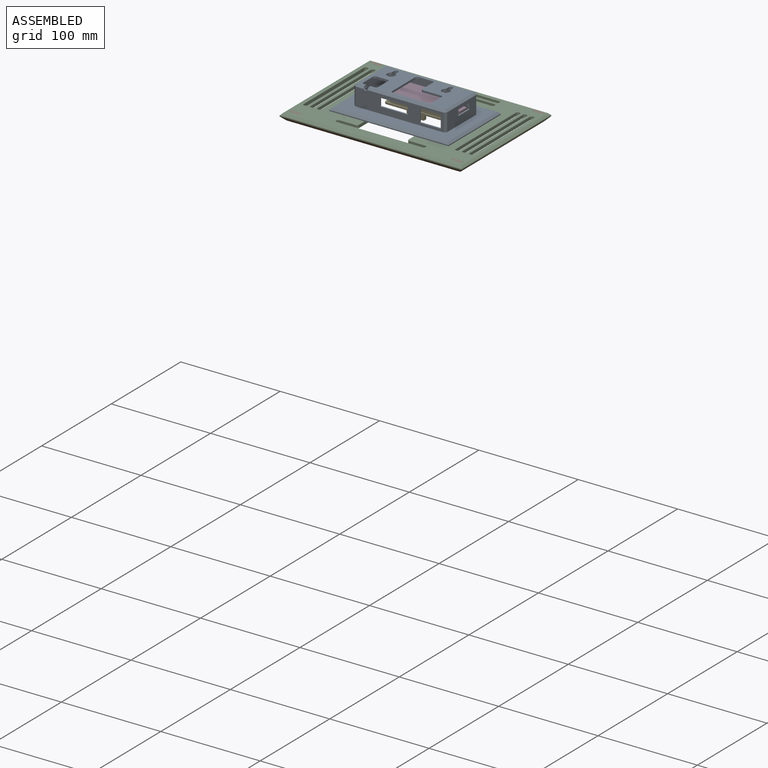
[diagram: assembled view]
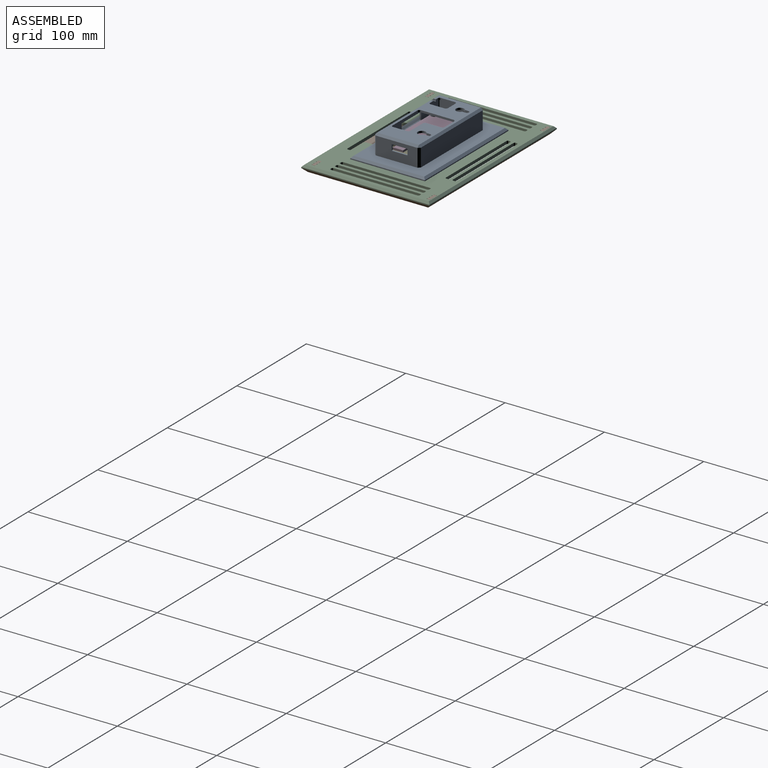
[diagram: assembled view, second angle]
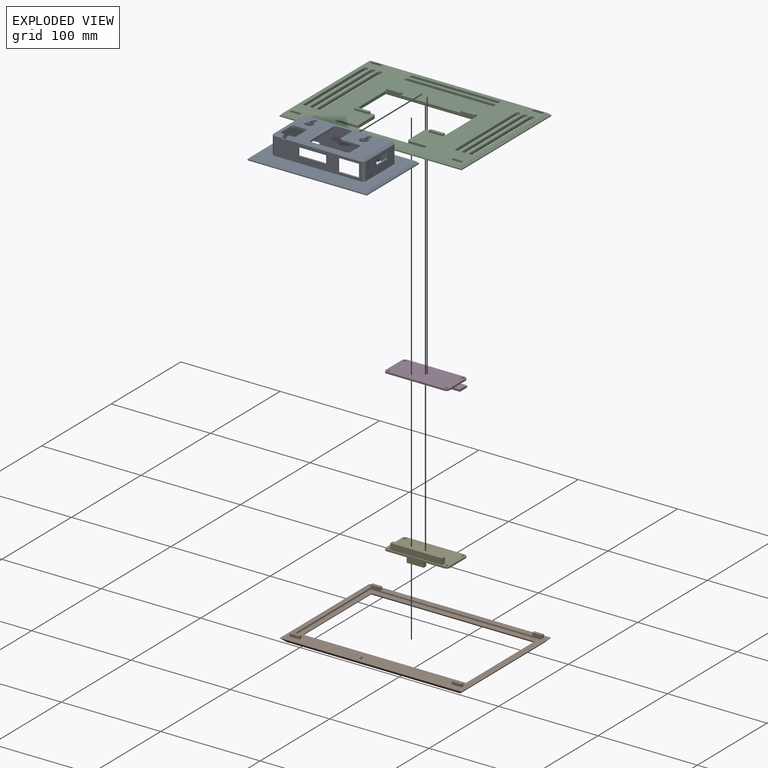
[diagram: exploded view]
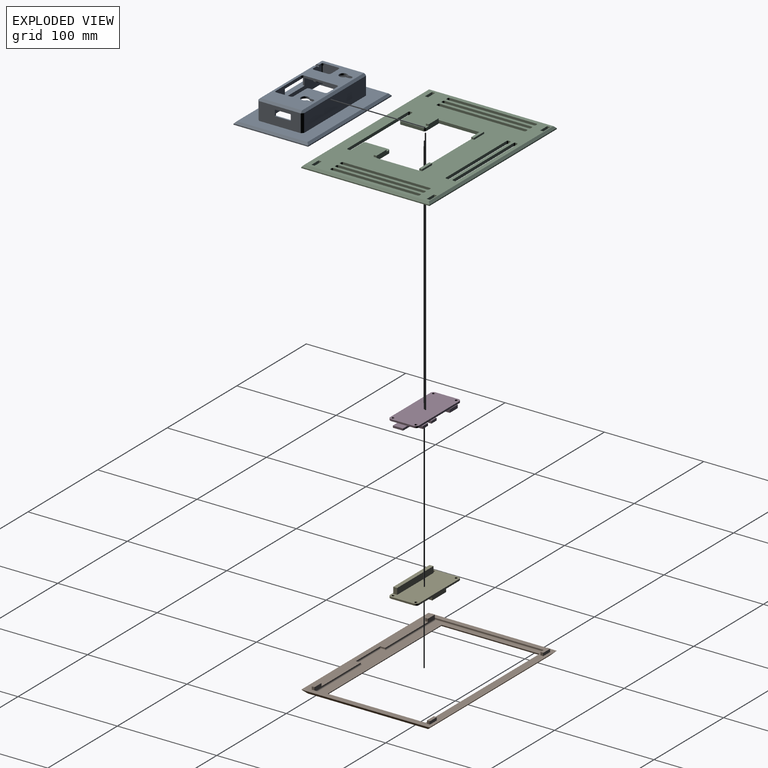
[diagram: exploded view, second angle]
ASSEMBLY  parts=5 mates=4
PART A: 125 faces, bbox 75x120x23 mm
  f0: plane 89x18mm, normal (-1,0,0), area 1102.9mm2, adj f1,f12,f13,f14,f15,f16,f17,f18
  f1: plane 77.12x2mm, normal (-0.71,0,-0.71), area 217.5mm2, adj f0,f4,f83,f121,f122
  f2: plane 4.62x2mm, normal (1,0,0), area 8.8mm2, adj f3,f4,f120,f121,f122
  f3: plane 90x43mm, normal (0,0,1), area 2081mm2, adj f2,f5,f6,f9,f10,f85,f86,f87
  f4: plane 89x42mm, normal (0,0,-1), area 2264.3mm2, adj f1,f2,f74,f79,f80,f84,f93,f94
  f5: plane 88x21mm, normal (1,0,0), area 1290.9mm2, adj f3,f12,f13,f14,f15,f16,f17,f18
  f6: plane 88x21mm, normal (-1,0,0), area 1790mm2, adj f3,f55,f58,f59,f67,f68,f90,f91
  f7: plane 42x18mm, normal (0,1,0), area 660.2mm2, adj f27,f28,f29,f30,f31,f32,f33,f34
  f8: plane 42x18mm, normal (0,-1,0), area 756mm2, adj f56,f73,f78,f79
  f9: plane 49.2x21mm, normal (0,-1,0), area 781.6mm2, adj f3,f27,f28,f29,f30,f31,f32,f33
  f10: plane 49.2x21mm, normal (0,1,0), area 877.4mm2, adj f3,f55,f61,f62,f66,f68,f91,f92
  f11: plane 89x18mm, normal (1,0,0), area 1602mm2, adj f56,f73,f74,f75
  f12: plane 12x1.5mm, normal (0,-1,0), area 18mm2, adj f0,f5,f13,f19
  f13: cylinder r=0.5mm len=1.5mm, axis (1,0,0), area 1.2mm2, adj f0,f5,f12,f14
  f14: plane 20x1.5mm, normal (0,0,-1), area 30mm2, adj f0,f5,f13,f15
  f15: cylinder r=0.5mm len=1.5mm, axis (1,0,0), area 1.2mm2, adj f0,f5,f14,f16
  f16: plane 12x1.5mm, normal (0,1,0), area 18mm2, adj f0,f5,f15,f17
  f17: cylinder r=0.5mm len=1.5mm, axis (1,0,0), area 1.2mm2, adj f0,f5,f16,f18
  f18: plane 20x1.5mm, normal (0,0,1), area 30mm2, adj f0,f5,f17,f19
  f19: cylinder r=0.5mm len=1.5mm, axis (1,0,0), area 1.2mm2, adj f0,f5,f12,f18
  f20: plane 7.5x1.5mm, normal (0,-1,0), area 11.3mm2, adj f0,f5,f21,f26
  f21: cylinder r=0.5mm len=1.5mm, axis (1,0,0), area 1.2mm2, adj f0,f5,f20,f22
  f22: plane 27x1.5mm, normal (0,0,-1), area 40.5mm2, adj f0,f5,f21,f23
  f23: cylinder r=0.5mm len=1.5mm, axis (1,0,0), area 1.2mm2, adj f0,f5,f22,f24
  f24: plane 7x1.5mm, normal (0,1,0), area 10.5mm2, adj f0,f5,f23,f25
  f25: cylinder r=0.5mm len=1.5mm, axis (1,0,0), area 1.2mm2, adj f0,f5,f24,f26
  f26: plane 27.5x1.5mm, normal (0,0,1), area 41.3mm2, adj f0,f5,f20,f25
  f27: plane 15x1.5mm, normal (0,0,-1), area 22.5mm2, adj f7,f9,f28,f34
  f28: cylinder r=0.5mm len=1.5mm, axis (0,-1,0), area 1.2mm2, adj f7,f9,f27,f29
  f29: plane 5x1.5mm, normal (1,0,0), area 7.5mm2, adj f7,f9,f28,f30
  f30: cylinder r=0.5mm len=1.5mm, axis (0,-1,0), area 1.2mm2, adj f7,f9,f29,f31
  f31: plane 15x1.5mm, normal (0,0,1), area 22.5mm2, adj f7,f9,f30,f32
  f32: cylinder r=0.5mm len=1.5mm, axis (0,-1,0), area 1.2mm2, adj f7,f9,f31,f33
  f33: plane 5x1.5mm, normal (-1,0,0), area 7.5mm2, adj f7,f9,f32,f34
  f34: cylinder r=0.5mm len=1.5mm, axis (0,-1,0), area 1.2mm2, adj f7,f9,f27,f33
  f35: plane 2.5x2.5mm, normal (0,0,1), area 4.9mm2, adj f50
  f36: cylinder r=1.25mm len=4mm, axis (0,0,-1), area 31.4mm2, adj f38,f47
  f37: cylinder r=3mm len=6mm, axis (0,0,-1), area 37.7mm2, adj f38,f86
  f38: plane 6x6mm, normal (0,0,1), area 23.4mm2, adj f36,f37
  f39: plane 2.5x2.5mm, normal (0,0,1), area 4.9mm2, adj f46
  f40: cylinder r=1.25mm len=4mm, axis (0,0,-1), area 31.4mm2, adj f42,f43
  f41: cylinder r=3mm len=6mm, axis (0,0,-1), area 37.7mm2, adj f42,f88
  f42: plane 6x6mm, normal (0,0,1), area 23.4mm2, adj f40,f41
  f43: plane 2.5x2.5mm, normal (0,0,1), area 4.9mm2, adj f40
  f44: plane 6x6mm, normal (0,0,1), area 23.4mm2, adj f45,f46
  f45: cylinder r=3mm len=6mm, axis (0,0,-1), area 37.7mm2, adj f44,f87
  f46: cylinder r=1.25mm len=4mm, axis (0,0,-1), area 31.4mm2, adj f39,f44
  f47: plane 2.5x2.5mm, normal (0,0,1), area 4.9mm2, adj f36
  f48: plane 6x6mm, normal (0,0,1), area 23.4mm2, adj f49,f50
  f49: cylinder r=3mm len=6mm, axis (0,0,-1), area 37.7mm2, adj f48,f85
  f50: cylinder r=1.25mm len=4mm, axis (0,0,-1), area 31.4mm2, adj f35,f48
  f51: plane 75x1mm, normal (0,1,0), area 75mm2, adj f52,f54,f55,f69
  f52: plane 120x1mm, normal (-1,0,0), area 120mm2, adj f51,f53,f55,f70
  f53: plane 75x1mm, normal (0,-1,0), area 75mm2, adj f52,f54,f55,f72
  f54: plane 120x1mm, normal (1,0,0), area 120mm2, adj f51,f53,f55,f71
  f55: plane 120x75mm, normal (0,0,1), area 4937.8mm2, adj f5,f6,f9,f10,f51,f52,f53,f54
  f56: plane 116x71mm, normal (0,0,-1), area 3966mm2, adj f0,f7,f8,f11,f69,f70,f71,f72
  f57: plane 15.5x2mm, normal (-1,0,0), area 31mm2, adj f9,f55,f58,f59
  f58: plane 3.1x2mm, normal (0,1,0), area 6.2mm2, adj f6,f55,f57,f59
  f59: plane 15.5x4.1mm, normal (0,0,1), area 48.3mm2, adj f6,f9,f57,f58,f90
  f60: plane 3.1x2mm, normal (0,-1,0), area 6.2mm2, adj f5,f55,f61,f62
  f61: plane 15.5x2mm, normal (1,0,0), area 31mm2, adj f10,f55,f60,f62
  f62: plane 15.5x4.1mm, normal (0,0,1), area 48.3mm2, adj f5,f10,f60,f61,f92
  f63: plane 15.5x2mm, normal (1,0,0), area 31mm2, adj f9,f55,f64,f65
  f64: plane 3.1x2mm, normal (0,1,0), area 6.2mm2, adj f5,f55,f63,f65
  f65: plane 15.5x4.1mm, normal (0,0,1), area 48.3mm2, adj f5,f9,f63,f64,f89
  f66: plane 15.5x2mm, normal (-1,0,0), area 31mm2, adj f10,f55,f67,f68
  f67: plane 3.1x2mm, normal (0,-1,0), area 6.2mm2, adj f6,f55,f66,f68
  f68: plane 15.5x4.1mm, normal (0,0,1), area 48.3mm2, adj f6,f10,f66,f67,f91
  f69: plane 75x2mm, normal (0,0.71,-0.71), area 206.5mm2, adj f51,f56,f70,f71
  f70: plane 120x2mm, normal (-0.71,0,-0.71), area 333.8mm2, adj f52,f56,f69,f72
  f71: plane 120x2mm, normal (0.71,0,-0.71), area 333.8mm2, adj f54,f56,f69,f72
  f72: plane 75x2mm, normal (0,-0.71,-0.71), area 206.5mm2, adj f53,f56,f70,f71
  f73: plane 18x2mm, normal (0.71,-0.71,0), area 50.9mm2, adj f8,f11,f56,f76
  f74: plane 89x2mm, normal (0.71,0,-0.71), area 251.7mm2, adj f4,f11,f76,f77
  f75: plane 18x2mm, normal (0.71,0.71,0), area 50.9mm2, adj f7,f11,f56,f77
  f76: plane 2x2mm, normal (0.58,-0.58,-0.58), area 3.5mm2, adj f73,f74,f79
  f77: plane 2x2mm, normal (0.58,0.58,-0.58), area 3.5mm2, adj f74,f75,f80
  f78: plane 18x2mm, normal (-0.71,-0.71,0), area 50.9mm2, adj f0,f8,f56,f82
  f79: plane 42x2mm, normal (0,-0.71,-0.71), area 118.8mm2, adj f4,f8,f76,f82
  f80: plane 42x2mm, normal (0,0.71,-0.71), area 118.8mm2, adj f4,f7,f77,f83
  f81: plane 18x2mm, normal (-0.71,0.71,0), area 50.9mm2, adj f0,f7,f56,f83
  f82: plane 2x2mm, normal (-0.58,-0.58,-0.58), area 3.5mm2, adj f78,f79,f84
  f83: plane 2x2mm, normal (-0.58,0.58,-0.58), area 3.5mm2, adj f1,f80,f81
  f84: plane 8.42x2mm, normal (-0.71,0,-0.71), area 23.1mm2, adj f0,f4,f82,f121,f123,f124
  f85: torus R=5mm, axis (0,0,1), area 73.6mm2, adj f3,f49
  f86: torus R=5mm, axis (0,0,1), area 73.6mm2, adj f3,f37
  f87: torus R=5mm, axis (0,0,1), area 73.6mm2, adj f3,f45
  f88: torus R=5mm, axis (0,0,1), area 73.6mm2, adj f3,f41
  f89: cylinder r=1mm len=19mm, axis (0,0,-1), area 29.8mm2, adj f3,f5,f9,f65
  f90: cylinder r=1mm len=19mm, axis (0,0,1), area 29.8mm2, adj f3,f6,f9,f59
  f91: cylinder r=1mm len=19mm, axis (0,0,-1), area 29.8mm2, adj f3,f6,f10,f68
  f92: cylinder r=1mm len=19mm, axis (0,0,1), area 29.8mm2, adj f3,f5,f10,f62
  f93: plane 36x2mm, normal (1,0,0), area 72mm2, adj f3,f4,f94,f104
  f94: cylinder r=2mm len=2mm, axis (0,0,1), area 6.3mm2, adj f3,f4,f93,f95
  f95: plane 33x2mm, normal (0,1,0), area 66mm2, adj f3,f4,f94,f96
  f96: cylinder r=2mm len=2mm, axis (0,0,1), area 6.3mm2, adj f3,f4,f95,f97
  f97: plane 14x2mm, normal (-1,0,0), area 28mm2, adj f3,f4,f96,f98
  f98: cylinder r=2mm len=2mm, axis (0,0,1), area 6.3mm2, adj f3,f4,f97,f99
  f99: plane 15x2mm, normal (0,-1,0), area 30mm2, adj f3,f4,f98,f100
  f100: cylinder r=2mm len=2mm, axis (0,0,1), area 6.3mm2, adj f3,f4,f99,f101
  f101: plane 18x2mm, normal (-1,0,0), area 36mm2, adj f3,f4,f100,f102
  f102: cylinder r=2mm len=2mm, axis (0,0,1), area 6.3mm2, adj f3,f4,f101,f103
  f103: plane 14x2mm, normal (0,-1,0), area 28mm2, adj f3,f4,f102,f104
  f104: cylinder r=2mm len=2mm, axis (0,0,1), area 6.3mm2, adj f3,f4,f93,f103
  f105: cylinder r=4mm len=8mm, axis (0,0,1), area 41.9mm2, adj f3,f4,f106,f108
  f106: plane 3.51x2mm, normal (0,1,0), area 7mm2, adj f3,f4,f105,f107
  f107: cylinder r=2mm len=4mm, axis (0,0,1), area 12.7mm2, adj f3,f4,f106,f108
  f108: plane 3.51x2mm, normal (0,-1,0), area 7mm2, adj f3,f4,f105,f107
  f109: cylinder r=4mm len=8mm, axis (0,0,1), area 41.9mm2, adj f3,f4,f110,f112
  f110: plane 3.54x2mm, normal (0,1,0), area 7.1mm2, adj f3,f4,f109,f111
  f111: cylinder r=2mm len=4mm, axis (0,0,1), area 12.6mm2, adj f3,f4,f110,f112
  f112: plane 3.54x2mm, normal (0,-1,0), area 7.1mm2, adj f3,f4,f109,f111
  f113: plane 2.92x2mm, normal (1,0,0), area 5.3mm2, adj f3,f4,f114,f121,f123,f124
  f114: cylinder r=2mm len=2mm, axis (0,0,1), area 6.3mm2, adj f3,f4,f113,f115
  f115: plane 14x2mm, normal (0,1,0), area 28mm2, adj f3,f4,f114,f116
  f116: cylinder r=2mm len=2mm, axis (0,0,1), area 6.3mm2, adj f3,f4,f115,f117
  f117: plane 11x2mm, normal (-1,0,0), area 22mm2, adj f3,f4,f116,f118
  f118: cylinder r=2mm len=2mm, axis (0,0,1), area 6.3mm2, adj f3,f4,f117,f119
  f119: plane 14x2mm, normal (0,-1,0), area 28mm2, adj f3,f4,f118,f120
  f120: cylinder r=2mm len=2mm, axis (0,0,1), area 6.3mm2, adj f2,f3,f4,f119
  f121: cylinder r=2mm len=4.5mm, axis (-1,0,0), area 14.7mm2, adj f0,f1,f2,f3,f5,f84,f113,f122
  f122: plane 3.44x0.94mm, normal (0,-1,0), area 2.8mm2, adj f1,f2,f4,f121
  f123: plane 3.56x1.06mm, normal (0,1,0), area 3.2mm2, adj f4,f84,f113,f124
  f124: plane 3.56x0.04mm, normal (0,0,-1), area 0.2mm2, adj f84,f113,f121,f123
PART B: 63 faces, bbox 183x129x7 mm
  f0: plane 183x129mm, normal (0,0,1), area 3763.1mm2, adj f1,f2,f3,f4,f5,f6,f7,f8
  f1: plane 66.5x4mm, normal (0,1,0), area 95.3mm2, adj f0,f2,f8,f30,f31,f34,f55
  f2: plane 5x1mm, normal (-1,0,0), area 5mm2, adj f0,f1,f3,f53
  f3: plane 35x1mm, normal (0,1,0), area 35mm2, adj f0,f2,f4,f51
  f4: plane 5x1mm, normal (1,0,0), area 5mm2, adj f0,f3,f5,f52
  f5: plane 71.5x4mm, normal (0,1,0), area 100.3mm2, adj f0,f4,f6,f26,f35,f38,f54
  f6: plane 113x1mm, normal (1,0,0), area 113mm2, adj f0,f5,f7,f56
  f7: plane 173x4mm, normal (0,-1,0), area 230.6mm2, adj f0,f6,f8,f18,f22,f40,f41,f44
  f8: plane 113x1mm, normal (-1,0,0), area 113mm2, adj f0,f1,f7,f57
  f9: plane 98.5x0.5mm, normal (1,0,0), area 49.2mm2, adj f10,f12,f14,f60
  f10: plane 164x0.5mm, normal (0,-1,0), area 82mm2, adj f9,f11,f14,f59
  f11: plane 98.5x0.5mm, normal (-1,0,0), area 49.2mm2, adj f10,f12,f14,f61
  f12: plane 164x0.5mm, normal (0,1,0), area 82mm2, adj f9,f11,f14,f62
  f13: plane 175x121mm, normal (0,0,-1), area 4224.5mm2, adj f47,f48,f49,f50,f59,f60,f61,f62
  f14: plane 171x116mm, normal (0,0,1), area 2992mm2, adj f9,f10,f11,f12,f51,f52,f53,f54
  f15: plane 9.6x3mm, normal (0,1,0), area 28.8mm2, adj f0,f18,f43,f46
  f16: plane 3x2.6mm, normal (-1,0,0), area 7.8mm2, adj f0,f18,f43,f44
  f17: plane 3x2.6mm, normal (1,0,0), area 7.8mm2, adj f0,f18,f45,f46
  f18: plane 10x3mm, normal (0,0,1), area 30mm2, adj f7,f15,f16,f17,f43,f44,f45,f46
  f19: plane 9.6x3mm, normal (0,1,0), area 28.8mm2, adj f0,f22,f39,f42
  f20: plane 3x2.6mm, normal (-1,0,0), area 7.8mm2, adj f0,f22,f39,f40
  f21: plane 3x2.6mm, normal (1,0,0), area 7.8mm2, adj f0,f22,f41,f42
  f22: plane 10x3mm, normal (0,0,1), area 30mm2, adj f7,f19,f20,f21,f39,f40,f41,f42
  f23: plane 3x2.6mm, normal (-1,0,0), area 7.8mm2, adj f0,f26,f35,f36
  f24: plane 9.6x3mm, normal (0,-1,0), area 28.8mm2, adj f0,f26,f36,f37
  f25: plane 3x2.6mm, normal (1,0,0), area 7.8mm2, adj f0,f26,f37,f38
  f26: plane 10x3mm, normal (0,0,1), area 30mm2, adj f5,f23,f24,f25,f35,f36,f37,f38
  f27: plane 3x2.6mm, normal (-1,0,0), area 7.8mm2, adj f0,f30,f31,f32
  f28: plane 9.6x3mm, normal (0,-1,0), area 28.8mm2, adj f0,f30,f32,f33
  f29: plane 3x2.6mm, normal (1,0,0), area 7.8mm2, adj f0,f30,f33,f34
  f30: plane 10x3mm, normal (0,0,1), area 30mm2, adj f1,f27,f28,f29,f31,f32,f33,f34
  f31: cylinder r=0.2mm len=3mm, axis (0,0,1), area 0.9mm2, adj f0,f1,f27,f30
  f32: cylinder r=0.2mm len=3mm, axis (0,0,-1), area 0.9mm2, adj f0,f27,f28,f30
  f33: cylinder r=0.2mm len=3mm, axis (0,0,1), area 0.9mm2, adj f0,f28,f29,f30
  f34: cylinder r=0.2mm len=3mm, axis (0,0,-1), area 0.9mm2, adj f0,f1,f29,f30
  f35: cylinder r=0.2mm len=3mm, axis (0,0,1), area 0.9mm2, adj f0,f5,f23,f26
  f36: cylinder r=0.2mm len=3mm, axis (0,0,-1), area 0.9mm2, adj f0,f23,f24,f26
  f37: cylinder r=0.2mm len=3mm, axis (0,0,1), area 0.9mm2, adj f0,f24,f25,f26
  f38: cylinder r=0.2mm len=3mm, axis (0,0,-1), area 0.9mm2, adj f0,f5,f25,f26
  f39: cylinder r=0.2mm len=3mm, axis (0,0,1), area 0.9mm2, adj f0,f19,f20,f22
  f40: cylinder r=0.2mm len=3mm, axis (0,0,-1), area 0.9mm2, adj f0,f7,f20,f22
  f41: cylinder r=0.2mm len=3mm, axis (0,0,1), area 0.9mm2, adj f0,f7,f21,f22
  f42: cylinder r=0.2mm len=3mm, axis (0,0,-1), area 0.9mm2, adj f0,f19,f21,f22
  f43: cylinder r=0.2mm len=3mm, axis (0,0,1), area 0.9mm2, adj f0,f15,f16,f18
  f44: cylinder r=0.2mm len=3mm, axis (0,0,-1), area 0.9mm2, adj f0,f7,f16,f18
  f45: cylinder r=0.2mm len=3mm, axis (0,0,1), area 0.9mm2, adj f0,f7,f17,f18
  f46: cylinder r=0.2mm len=3mm, axis (0,0,-1), area 0.9mm2, adj f0,f15,f17,f18
  f47: plane 129x4mm, normal (0.71,0,-0.71), area 707.1mm2, adj f0,f13,f48,f49
  f48: plane 183x4mm, normal (0,-0.71,-0.71), area 1012.6mm2, adj f0,f13,f47,f50
  f49: plane 183x4mm, normal (0,0.71,-0.71), area 1012.6mm2, adj f0,f13,f47,f50
  f50: plane 129x4mm, normal (-0.71,0,-0.71), area 707.1mm2, adj f0,f13,f48,f49
  f51: cylinder r=1mm len=35mm, axis (-1,0,0), area 53.8mm2, adj f3,f14,f52,f53
  f52: cylinder r=1mm len=6mm, axis (0,1,0), area 7.9mm2, adj f4,f14,f51,f54
  f53: cylinder r=1mm len=6mm, axis (0,-1,0), area 7.9mm2, adj f2,f14,f51,f55
  f54: cylinder r=1mm len=72.5mm, axis (-1,0,0), area 112.3mm2, adj f5,f14,f52,f56
  f55: cylinder r=1mm len=67.5mm, axis (-1,0,0), area 104.5mm2, adj f1,f14,f53,f57
  f56: cylinder r=1mm len=113mm, axis (0,1,0), area 176.4mm2, adj f6,f14,f54,f58
  f57: cylinder r=1mm len=113mm, axis (0,-1,0), area 176.4mm2, adj f8,f14,f55,f58
  f58: cylinder r=1mm len=173mm, axis (1,0,0), area 270.6mm2, adj f7,f14,f56,f57
  f59: plane 167x1.5mm, normal (0,-0.71,-0.71), area 351.1mm2, adj f10,f13,f60,f61
  f60: plane 101.5x1.5mm, normal (0.71,0,-0.71), area 212.1mm2, adj f9,f13,f59,f62
  f61: plane 101.5x1.5mm, normal (-0.71,0,-0.71), area 212.1mm2, adj f11,f13,f59,f62
  f62: plane 167x1.5mm, normal (0,0.71,-0.71), area 351.1mm2, adj f12,f13,f60,f61
PART C: 142 faces, bbox 183x129x4.8 mm
  f0: plane 179x125mm, normal (0,0,1), area 13687mm2, adj f1,f6,f7,f8,f9,f10,f11,f12
  f1: plane 18x4.8mm, normal (0,1,0), area 79.9mm2, adj f0,f2,f6,f103,f138,f140,f141
  f2: plane 183x129mm, normal (0,0,-1), area 15080.5mm2, adj f1,f3,f4,f5,f6,f7,f8,f9
  f3: plane 183x1mm, normal (0,1,0), area 183mm2, adj f2,f4,f42,f43
  f4: plane 129x1mm, normal (-1,0,0), area 129mm2, adj f2,f3,f5,f44
  f5: plane 183x1mm, normal (0,-1,0), area 183mm2, adj f2,f4,f42,f46
  f6: plane 43x3mm, normal (1,0,0), area 129mm2, adj f0,f1,f2,f7
  f7: plane 90x4.8mm, normal (0,-1,0), area 322mm2, adj f0,f2,f6,f8,f127,f128,f129,f131
  f8: plane 43x3mm, normal (-1,0,0), area 129mm2, adj f0,f2,f7,f37
  f9: cylinder r=0.2mm len=3mm, axis (0,0,-1), area 0.9mm2, adj f0,f2,f10,f38
  f10: plane 9.8x3mm, normal (0,-1,0), area 29.4mm2, adj f0,f2,f9,f11
  f11: cylinder r=0.2mm len=3mm, axis (0,0,-1), area 0.9mm2, adj f0,f2,f10,f12
  f12: plane 3x2.8mm, normal (-1,0,0), area 8.4mm2, adj f0,f2,f11,f13
  f13: cylinder r=0.2mm len=3mm, axis (0,0,-1), area 0.9mm2, adj f0,f2,f12,f14
  f14: plane 9.8x3mm, normal (0,1,0), area 29.4mm2, adj f0,f2,f13,f15
  f15: cylinder r=0.2mm len=3mm, axis (0,0,-1), area 0.9mm2, adj f0,f2,f14,f38
  f16: cylinder r=0.2mm len=3mm, axis (0,0,-1), area 0.9mm2, adj f0,f2,f17,f39
  f17: plane 9.8x3mm, normal (0,-1,0), area 29.4mm2, adj f0,f2,f16,f18
  f18: cylinder r=0.2mm len=3mm, axis (0,0,-1), area 0.9mm2, adj f0,f2,f17,f19
  f19: plane 3x2.8mm, normal (-1,0,0), area 8.4mm2, adj f0,f2,f18,f20
  f20: cylinder r=0.2mm len=3mm, axis (0,0,-1), area 0.9mm2, adj f0,f2,f19,f21
  f21: plane 9.8x3mm, normal (0,1,0), area 29.4mm2, adj f0,f2,f20,f22
  f22: cylinder r=0.2mm len=3mm, axis (0,0,-1), area 0.9mm2, adj f0,f2,f21,f39
  f23: cylinder r=0.2mm len=3mm, axis (0,0,-1), area 0.9mm2, adj f0,f2,f24,f40
  f24: plane 3x2.8mm, normal (-1,0,0), area 8.4mm2, adj f0,f2,f23,f25
  f25: cylinder r=0.2mm len=3mm, axis (0,0,-1), area 0.9mm2, adj f0,f2,f24,f26
  f26: plane 9.8x3mm, normal (0,1,0), area 29.4mm2, adj f0,f2,f25,f27
  f27: cylinder r=0.2mm len=3mm, axis (0,0,-1), area 0.9mm2, adj f0,f2,f26,f28
  f28: plane 3x2.8mm, normal (1,0,0), area 8.4mm2, adj f0,f2,f27,f29
  f29: cylinder r=0.2mm len=3mm, axis (0,0,-1), area 0.9mm2, adj f0,f2,f28,f40
  f30: cylinder r=0.2mm len=3mm, axis (0,0,-1), area 0.9mm2, adj f0,f2,f31,f41
  f31: plane 3x2.8mm, normal (-1,0,0), area 8.4mm2, adj f0,f2,f30,f32
  f32: cylinder r=0.2mm len=3mm, axis (0,0,-1), area 0.9mm2, adj f0,f2,f31,f33
  f33: plane 9.8x3mm, normal (0,1,0), area 29.4mm2, adj f0,f2,f32,f34
  f34: cylinder r=0.2mm len=3mm, axis (0,0,-1), area 0.9mm2, adj f0,f2,f33,f35
  f35: plane 3x2.8mm, normal (1,0,0), area 8.4mm2, adj f0,f2,f34,f36
  f36: cylinder r=0.2mm len=3mm, axis (0,0,-1), area 0.9mm2, adj f0,f2,f35,f41
  f37: plane 18x4.8mm, normal (0,1,0), area 79.9mm2, adj f0,f2,f8,f117,f134,f136,f137
  f38: plane 3x2.8mm, normal (1,0,0), area 8.4mm2, adj f0,f2,f9,f15
  f39: plane 3x2.8mm, normal (1,0,0), area 8.4mm2, adj f0,f2,f16,f22
  f40: plane 9.8x3mm, normal (0,-1,0), area 29.4mm2, adj f0,f2,f23,f29
  f41: plane 9.8x3mm, normal (0,-1,0), area 29.4mm2, adj f0,f2,f30,f36
  f42: plane 129x1mm, normal (1,0,0), area 129mm2, adj f2,f3,f5,f45
  f43: plane 183x2mm, normal (0,0.71,0.71), area 511.9mm2, adj f0,f3,f44,f45
  f44: plane 129x2mm, normal (-0.71,0,0.71), area 359.2mm2, adj f0,f4,f43,f46
  f45: plane 129x2mm, normal (0.71,0,0.71), area 359.2mm2, adj f0,f42,f43,f46
  f46: plane 183x2mm, normal (0,-0.71,0.71), area 511.9mm2, adj f0,f5,f44,f45
  f47: plane 87x3mm, normal (0,-1,0), area 261mm2, adj f0,f2,f48,f54
  f48: cylinder r=1.5mm len=3mm, axis (0,0,-1), area 7.1mm2, adj f0,f2,f47,f49
  f49: plane 3x1mm, normal (1,0,0), area 3mm2, adj f0,f2,f48,f50
  f50: cylinder r=1.5mm len=3mm, axis (0,0,-1), area 7.1mm2, adj f0,f2,f49,f51
  f51: plane 87x3mm, normal (0,1,0), area 261mm2, adj f0,f2,f50,f52
  f52: cylinder r=1.5mm len=3mm, axis (0,0,-1), area 7.1mm2, adj f0,f2,f51,f53
  f53: plane 3x1mm, normal (-1,0,0), area 3mm2, adj f0,f2,f52,f54
  f54: cylinder r=1.5mm len=3mm, axis (0,0,-1), area 7.1mm2, adj f0,f2,f47,f53
  f55: plane 87x3mm, normal (1,0,0), area 261mm2, adj f0,f2,f56,f62
  f56: cylinder r=1.5mm len=3mm, axis (0,0,-1), area 7.1mm2, adj f0,f2,f55,f57
  f57: plane 3x1mm, normal (0,1,0), area 3mm2, adj f0,f2,f56,f58
  f58: cylinder r=1.5mm len=3mm, axis (0,0,-1), area 7.1mm2, adj f0,f2,f57,f59
  f59: plane 87x3mm, normal (-1,0,0), area 261mm2, adj f0,f2,f58,f60
  f60: cylinder r=1.5mm len=3mm, axis (0,0,-1), area 7.1mm2, adj f0,f2,f59,f61
  f61: plane 3x1mm, normal (0,-1,0), area 3mm2, adj f0,f2,f60,f62
  f62: cylinder r=1.5mm len=3mm, axis (0,0,-1), area 7.1mm2, adj f0,f2,f55,f61
  f63: plane 87x3mm, normal (1,0,0), area 261mm2, adj f0,f2,f64,f70
  f64: cylinder r=1.5mm len=3mm, axis (0,0,-1), area 7.1mm2, adj f0,f2,f63,f65
  f65: plane 3x1mm, normal (0,1,0), area 3mm2, adj f0,f2,f64,f66
  f66: cylinder r=1.5mm len=3mm, axis (0,0,-1), area 7.1mm2, adj f0,f2,f65,f67
  f67: plane 87x3mm, normal (-1,0,0), area 261mm2, adj f0,f2,f66,f68
  f68: cylinder r=1.5mm len=3mm, axis (0,0,-1), area 7.1mm2, adj f0,f2,f67,f69
  f69: plane 3x1mm, normal (0,-1,0), area 3mm2, adj f0,f2,f68,f70
  f70: cylinder r=1.5mm len=3mm, axis (0,0,-1), area 7.1mm2, adj f0,f2,f63,f69
  f71: plane 87x3mm, normal (1,0,0), area 261mm2, adj f0,f2,f72,f78
  f72: cylinder r=1.5mm len=3mm, axis (0,0,-1), area 7.1mm2, adj f0,f2,f71,f73
  f73: plane 3x1mm, normal (0,1,0), area 3mm2, adj f0,f2,f72,f74
  f74: cylinder r=1.5mm len=3mm, axis (0,0,-1), area 7.1mm2, adj f0,f2,f73,f75
  f75: plane 87x3mm, normal (-1,0,0), area 261mm2, adj f0,f2,f74,f76
  f76: cylinder r=1.5mm len=3mm, axis (0,0,-1), area 7.1mm2, adj f0,f2,f75,f77
  f77: plane 3x1mm, normal (0,-1,0), area 3mm2, adj f0,f2,f76,f78
  f78: cylinder r=1.5mm len=3mm, axis (0,0,-1), area 7.1mm2, adj f0,f2,f71,f77
  f79: plane 87x3mm, normal (1,0,0), area 261mm2, adj f0,f2,f80,f86
  f80: cylinder r=1.5mm len=3mm, axis (0,0,-1), area 7.1mm2, adj f0,f2,f79,f81
  f81: plane 3x1mm, normal (0,1,0), area 3mm2, adj f0,f2,f80,f82
  f82: cylinder r=1.5mm len=3mm, axis (0,0,-1), area 7.1mm2, adj f0,f2,f81,f83
  f83: plane 87x3mm, normal (-1,0,0), area 261mm2, adj f0,f2,f82,f84
  f84: cylinder r=1.5mm len=3mm, axis (0,0,-1), area 7.1mm2, adj f0,f2,f83,f85
  f85: plane 3x1mm, normal (0,-1,0), area 3mm2, adj f0,f2,f84,f86
  f86: cylinder r=1.5mm len=3mm, axis (0,0,-1), area 7.1mm2, adj f0,f2,f79,f85
  f87: plane 87x3mm, normal (1,0,0), area 261mm2, adj f0,f2,f88,f94
  f88: cylinder r=1.5mm len=3mm, axis (0,0,-1), area 7.1mm2, adj f0,f2,f87,f89
  f89: plane 3x1mm, normal (0,1,0), area 3mm2, adj f0,f2,f88,f90
  f90: cylinder r=1.5mm len=3mm, axis (0,0,-1), area 7.1mm2, adj f0,f2,f89,f91
  f91: plane 87x3mm, normal (-1,0,0), area 261mm2, adj f0,f2,f90,f92
  f92: cylinder r=1.5mm len=3mm, axis (0,0,-1), area 7.1mm2, adj f0,f2,f91,f93
  f93: plane 3x1mm, normal (0,-1,0), area 3mm2, adj f0,f2,f92,f94
  f94: cylinder r=1.5mm len=3mm, axis (0,0,-1), area 7.1mm2, adj f0,f2,f87,f93
  f95: plane 87x3mm, normal (1,0,0), area 261mm2, adj f0,f2,f96,f102
  f96: cylinder r=1.5mm len=3mm, axis (0,0,-1), area 7.1mm2, adj f0,f2,f95,f97
  f97: plane 3x1mm, normal (0,1,0), area 3mm2, adj f0,f2,f96,f98
  f98: cylinder r=1.5mm len=3mm, axis (0,0,-1), area 7.1mm2, adj f0,f2,f97,f99
  f99: plane 87x3mm, normal (-1,0,0), area 261mm2, adj f0,f2,f98,f100
  f100: cylinder r=1.5mm len=3mm, axis (0,0,-1), area 7.1mm2, adj f0,f2,f99,f101
  f101: plane 3x1mm, normal (0,-1,0), area 3mm2, adj f0,f2,f100,f102
  f102: cylinder r=1.5mm len=3mm, axis (0,0,-1), area 7.1mm2, adj f0,f2,f95,f101
  f103: cylinder r=2mm len=3mm, axis (0,0,-1), area 9.4mm2, adj f0,f1,f2,f104
  f104: plane 22x3mm, normal (1,0,0), area 66mm2, adj f0,f2,f103,f105
  f105: cylinder r=2mm len=3mm, axis (0,0,-1), area 9.4mm2, adj f0,f2,f104,f106
  f106: plane 16.5x3mm, normal (0,-1,0), area 49.5mm2, adj f0,f2,f105,f107
  f107: cylinder r=1.5mm len=3mm, axis (0,0,-1), area 7.1mm2, adj f0,f2,f106,f108
  f108: plane 3x1mm, normal (1,0,0), area 3mm2, adj f0,f2,f107,f109
  f109: cylinder r=1.5mm len=3mm, axis (0,0,-1), area 7.1mm2, adj f0,f2,f108,f110
  f110: plane 87x3mm, normal (0,1,0), area 261mm2, adj f0,f2,f109,f111
  f111: cylinder r=1.5mm len=3mm, axis (0,0,-1), area 7.1mm2, adj f0,f2,f110,f112
  f112: plane 3x1mm, normal (-1,0,0), area 3mm2, adj f0,f2,f111,f113
  f113: cylinder r=1.5mm len=3mm, axis (0,0,-1), area 7.1mm2, adj f0,f2,f112,f114
  f114: plane 16.5x3mm, normal (0,-1,0), area 49.5mm2, adj f0,f2,f113,f115
  f115: cylinder r=2mm len=3mm, axis (0,0,-1), area 9.4mm2, adj f0,f2,f114,f116
  f116: plane 22x3mm, normal (-1,0,0), area 66mm2, adj f0,f2,f115,f117
  f117: cylinder r=2mm len=3mm, axis (0,0,-1), area 9.4mm2, adj f0,f2,f37,f116
  f118: plane 87x3mm, normal (0,-1,0), area 261mm2, adj f0,f2,f119,f125
  f119: cylinder r=1.5mm len=3mm, axis (0,0,-1), area 7.1mm2, adj f0,f2,f118,f120
  f120: plane 3x1mm, normal (1,0,0), area 3mm2, adj f0,f2,f119,f121
  f121: cylinder r=1.5mm len=3mm, axis (0,0,-1), area 7.1mm2, adj f0,f2,f120,f122
  f122: plane 87x3mm, normal (0,1,0), area 261mm2, adj f0,f2,f121,f123
  f123: cylinder r=1.5mm len=3mm, axis (0,0,-1), area 7.1mm2, adj f0,f2,f122,f124
  f124: plane 3x1mm, normal (-1,0,0), area 3mm2, adj f0,f2,f123,f125
  f125: cylinder r=1.5mm len=3mm, axis (0,0,-1), area 7.1mm2, adj f0,f2,f118,f124
  f126: plane 14.5x1.8mm, normal (0,1,0), area 26.1mm2, adj f0,f127,f128,f129
  f127: plane 2.8x1.8mm, normal (-1,0,0), area 5mm2, adj f0,f7,f126,f129
  f128: plane 2.8x1.8mm, normal (1,0,0), area 5mm2, adj f0,f7,f126,f129
  f129: plane 14.5x2.8mm, normal (0,0,1), area 40.6mm2, adj f7,f126,f127,f128
  f130: plane 14.4x1.8mm, normal (0,1,0), area 25.9mm2, adj f0,f131,f132,f133
  f131: plane 2.8x1.8mm, normal (-1,0,0), area 5mm2, adj f0,f7,f130,f133
  f132: plane 2.8x1.8mm, normal (1,0,0), area 5mm2, adj f0,f7,f130,f133
  f133: plane 14.4x2.8mm, normal (0,0,1), area 40.3mm2, adj f7,f130,f131,f132
  f134: plane 2.8x1.8mm, normal (-1,0,0), area 5mm2, adj f0,f37,f135,f137
  f135: plane 14.4x1.8mm, normal (0,-1,0), area 25.9mm2, adj f0,f134,f136,f137
  f136: plane 2.8x1.8mm, normal (1,0,0), area 5mm2, adj f0,f37,f135,f137
  f137: plane 14.4x2.8mm, normal (0,0,1), area 40.3mm2, adj f37,f134,f135,f136
  f138: plane 2.8x1.8mm, normal (-1,0,0), area 5mm2, adj f0,f1,f139,f141
  f139: plane 14.4x1.8mm, normal (0,-1,0), area 25.9mm2, adj f0,f138,f140,f141
  f140: plane 2.8x1.8mm, normal (1,0,0), area 5mm2, adj f0,f1,f139,f141
  f141: plane 14.4x2.8mm, normal (0,0,1), area 40.3mm2, adj f1,f138,f139,f140
PART D: 48 faces, bbox 70.2x30.1x5 mm
  f0: plane 64x29mm, normal (0,0,1), area 1323.1mm2, adj f1,f2,f3,f4,f5,f6,f7,f8
  f1: plane 23x1.75mm, normal (-1,0,0), area 40.2mm2, adj f0,f2,f12,f13
  f2: cylinder r=3mm len=3mm, axis (0,0,-1), area 8.2mm2, adj f0,f1,f3,f13
  f3: plane 58x1.75mm, normal (0,-1,0), area 101.5mm2, adj f0,f2,f4,f13,f24,f30,f36
  f4: cylinder r=3mm len=3mm, axis (0,0,-1), area 8.2mm2, adj f0,f3,f5,f13
  f5: plane 23x1.75mm, normal (1,0,0), area 40.2mm2, adj f0,f4,f6,f13,f47
  f6: cylinder r=3mm len=3mm, axis (0,0,-1), area 8.2mm2, adj f0,f5,f7,f13
  f7: plane 58x1.75mm, normal (0,1,0), area 101.5mm2, adj f0,f6,f12,f13
  f8: cylinder r=1.25mm len=2.5mm, axis (0,0,-1), area 13.7mm2, adj f0,f13
  f9: cylinder r=1.25mm len=2.5mm, axis (0,0,-1), area 13.7mm2, adj f0,f13
  f10: cylinder r=1.35mm len=2.7mm, axis (0,0,-1), area 14.9mm2, adj f0,f13
  f11: cylinder r=1.37mm len=2.74mm, axis (0,0,-1), area 15mm2, adj f0,f13
  f12: cylinder r=3mm len=3mm, axis (0,0,-1), area 8.2mm2, adj f0,f1,f7,f13
  f13: plane 64x29mm, normal (0,0,-1), area 1826.8mm2, adj f1,f2,f3,f4,f5,f6,f7,f8
  f14: plane 11.47x1.5mm, normal (0,1,0), area 17.2mm2, adj f0,f15,f17,f18
  f15: plane 11.91x1.5mm, normal (-1,0,0), area 17.9mm2, adj f0,f14,f16,f18
  f16: plane 11.47x1.5mm, normal (0,-1,0), area 17.2mm2, adj f0,f15,f17,f18
  f17: plane 11.91x1.5mm, normal (1,0,0), area 17.9mm2, adj f0,f14,f16,f18
  f18: plane 11.91x11.47mm, normal (0,0,1), area 136.5mm2, adj f14,f15,f16,f17
  f19: plane 11.97x1.5mm, normal (0,1,0), area 18mm2, adj f0,f20,f22,f23
  f20: plane 11.91x1.5mm, normal (-1,0,0), area 17.9mm2, adj f0,f19,f21,f23
  f21: plane 11.97x1.5mm, normal (0,-1,0), area 18mm2, adj f0,f20,f22,f23
  f22: plane 11.91x1.5mm, normal (1,0,0), area 17.9mm2, adj f0,f19,f21,f23
  f23: plane 11.97x11.91mm, normal (0,0,1), area 142.5mm2, adj f19,f20,f21,f22
  f24: plane 7.43x1.06mm, normal (0,0,-1), area 7.8mm2, adj f3,f26,f27,f28
  f25: plane 7.43x2.5mm, normal (0,1,0), area 18.6mm2, adj f0,f26,f28,f29
  f26: plane 5.17x2.5mm, normal (-1,0,0), area 12.9mm2, adj f0,f24,f25,f27,f29
  f27: plane 7.43x2.5mm, normal (0,-1,0), area 18.6mm2, adj f24,f26,f28,f29
  f28: plane 5.17x2.5mm, normal (1,0,0), area 12.9mm2, adj f0,f24,f25,f27,f29
  f29: plane 7.43x5.17mm, normal (0,0,1), area 38.4mm2, adj f25,f26,f27,f28
  f30: plane 7.62x1.12mm, normal (0,0,-1), area 8.5mm2, adj f3,f31,f33,f34
  f31: plane 4.98x2.5mm, normal (1,0,0), area 12.4mm2, adj f0,f30,f32,f34,f35
  f32: plane 7.62x2.5mm, normal (0,1,0), area 19.1mm2, adj f0,f31,f33,f35
  f33: plane 4.98x2.5mm, normal (-1,0,0), area 12.4mm2, adj f0,f30,f32,f34,f35
  f34: plane 7.62x2.5mm, normal (0,-1,0), area 19.1mm2, adj f30,f31,f33,f35
  f35: plane 7.62x4.98mm, normal (0,0,1), area 37.9mm2, adj f31,f32,f33,f34
  f36: plane 11.36x0.56mm, normal (0,0,-1), area 6.3mm2, adj f3,f37,f39,f40
  f37: plane 7.35x3.2mm, normal (1,0,0), area 23.5mm2, adj f0,f36,f38,f40,f41
  f38: plane 11.36x3.2mm, normal (0,1,0), area 36.4mm2, adj f0,f37,f39,f41
  f39: plane 7.35x3.2mm, normal (-1,0,0), area 23.5mm2, adj f0,f36,f38,f40,f41
  f40: plane 11.36x3.2mm, normal (0,-1,0), area 36.4mm2, adj f36,f37,f39,f41
  f41: plane 11.36x7.35mm, normal (0,0,1), area 83.5mm2, adj f37,f38,f39,f40
  f42: plane 14.74x2mm, normal (0,1,0), area 29.5mm2, adj f0,f43,f45,f46,f47
  f43: plane 10.21x2mm, normal (-1,0,0), area 20.4mm2, adj f0,f42,f44,f46
  f44: plane 14.74x2mm, normal (0,-1,0), area 29.5mm2, adj f0,f43,f45,f46,f47
  f45: plane 10.21x2mm, normal (1,0,0), area 20.4mm2, adj f42,f44,f46,f47
  f46: plane 14.74x10.21mm, normal (0,0,1), area 150.5mm2, adj f42,f43,f44,f45
  f47: plane 10.21x6.16mm, normal (0,0,-1), area 62.9mm2, adj f5,f42,f44,f45
PART E: 27 faces, bbox 64x29x13 mm
  f0: plane 64x29mm, normal (0,0,1), area 1602.6mm2, adj f2,f3,f4,f5,f6,f7,f8,f9
  f1: plane 64x29mm, normal (0,0,-1), area 1622.2mm2, adj f2,f3,f4,f5,f6,f7,f8,f9
  f2: plane 23x1.75mm, normal (-1,0,0), area 40.2mm2, adj f0,f1,f3,f13
  f3: cylinder r=3mm len=3mm, axis (0,0,-1), area 8.2mm2, adj f0,f1,f2,f4
  f4: plane 58x4.75mm, normal (0,-1,0), area 161.5mm2, adj f0,f1,f3,f5,f24,f25,f26
  f5: cylinder r=3mm len=3mm, axis (0,0,-1), area 8.2mm2, adj f0,f1,f4,f6
  f6: plane 23x1.75mm, normal (1,0,0), area 40.2mm2, adj f0,f1,f5,f7
  f7: cylinder r=3mm len=3mm, axis (0,0,-1), area 8.2mm2, adj f0,f1,f6,f8
  f8: plane 58x6.75mm, normal (0,1,0), area 187.8mm2, adj f0,f1,f7,f13,f19,f21,f22
  f9: cylinder r=1.25mm len=2.5mm, axis (0,0,-1), area 13.7mm2, adj f0,f1
  f10: cylinder r=1.25mm len=2.5mm, axis (0,0,-1), area 13.7mm2, adj f0,f1
  f11: cylinder r=1.35mm len=2.7mm, axis (0,0,-1), area 14.9mm2, adj f0,f1
  f12: cylinder r=1.37mm len=2.74mm, axis (0,0,-1), area 15mm2, adj f0,f1
  f13: cylinder r=3mm len=3mm, axis (0,0,-1), area 8.2mm2, adj f0,f1,f2,f8
  f14: plane 6.25x3.92mm, normal (-1,0,0), area 24.5mm2, adj f1,f15,f17,f18
  f15: plane 52.21x6.25mm, normal (0,-1,0), area 326.3mm2, adj f1,f14,f16,f18
  f16: plane 6.25x3.92mm, normal (1,0,0), area 24.5mm2, adj f1,f15,f17,f18
  f17: plane 52.21x6.25mm, normal (0,1,0), area 326.3mm2, adj f1,f14,f16,f18
  f18: plane 52.21x3.92mm, normal (0,0,-1), area 204.7mm2, adj f14,f15,f16,f17
  f19: plane 5x3.72mm, normal (-1,0,0), area 18.6mm2, adj f0,f8,f20,f22
  f20: plane 17.26x5mm, normal (0,-1,0), area 86.3mm2, adj f0,f19,f21,f22
  f21: plane 5x3.72mm, normal (1,0,0), area 18.6mm2, adj f0,f8,f20,f22
  f22: plane 17.26x3.72mm, normal (0,0,1), area 64.3mm2, adj f8,f19,f20,f21
  f23: plane 20x3mm, normal (0,1,0), area 60mm2, adj f0,f24,f25,f26
  f24: plane 8x3mm, normal (-1,0,0), area 24mm2, adj f0,f4,f23,f26
  f25: plane 8x3mm, normal (1,0,0), area 24mm2, adj f0,f4,f23,f26
  f26: plane 20x8mm, normal (0,0,1), area 160mm2, adj f4,f23,f24,f25
PLACE A rot(axis=(0.71,0.71,0),180deg) t=(74.94,50.04,81.52)mm fixed
PLACE B t=(-15.11,-7.46,55.52)mm
PLACE C t=(-15.11,121.54,57.52)mm
PLACE D rot(axis=(-1,0,0),180deg) t=(85.28,59.07,77.52)mm
PLACE E rot(axis=(1,0,0),180deg) t=(85.28,59.07,69.52)mm
MATE fastened C.f0 <-> A.f55  axis (0,0,1) through (31.39,57.04,60.52)mm
MATE fastened D.f4 <-> A.f36  axis (0,0,1) through (114.32,70.54,77.52)mm
MATE fastened B.f0 <-> C.f2  axis (0,0,1) through (162.89,117.04,57.52)mm
MATE fastened E.f7 <-> D.f6  axis (0,0,-1) through (114.32,47.54,67.77)mm
